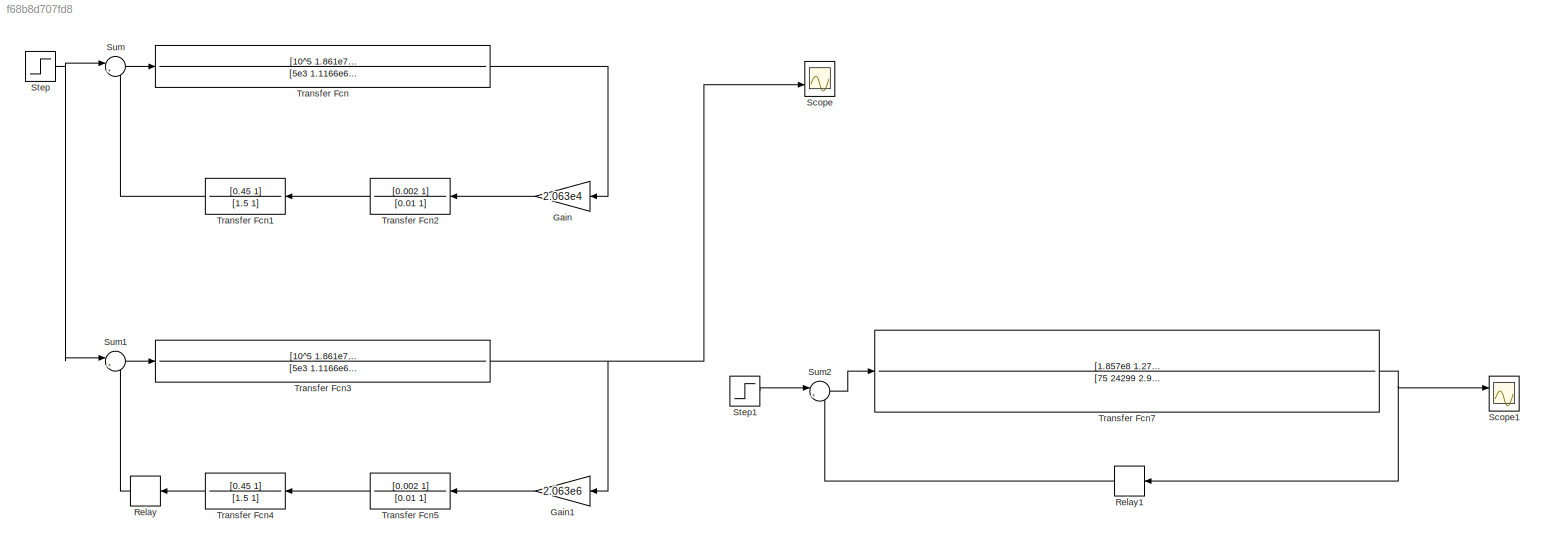
MODEL slx_f68b8d707fd8
KIND model
CONFIG AbsTol = auto
CONFIG EnableMultiTasking = off
CONFIG FixedStep = auto
CONFIG MaxStep = auto
CONFIG MinStep = auto
CONFIG RelTol = 1e-3
CONFIG SampleTimeConstraint = Unconstrained
CONFIG Solver = VariableStepAuto
CONFIG SolverName = VariableStepAuto
CONFIG StartTime = 0.0
CONFIG StopTime = 1
WORKSPACE source: mxarray member
WORKSPACE epse = 0.0001
BLOCK [Gain] Gain
  Gain = 2.063e4
BLOCK [Gain] Gain1
  Gain = 2.063e6
BLOCK [Relay] Relay
  OffOutputValue = -10
  OnOutputValue = 10
BLOCK [Relay] Relay1
  OffOutputValue = -10
  OffSwitchValue = 0
  OnOutputValue = 10
  OnSwitchValue = 0
BLOCK [Scope] Scope
  Floating = off
  NumInputPorts = 2
  Ports = [2]
  ScopeSpecificationString = Simulink.scopes.TimeScopeBlockCfg('CurrentConfiguration', extmgr.ConfigurationSet(extmgr.Configuration('Core','General UI',true,'FigureColor',[1 1 1]),extmgr.Configuration('Core','Source UI',true),extmgr.Configuration('Sources','WiredSimulink',true),extmgr.Configuration('Visuals','Time Domain',true,'SerializedDisplays',{struct('MinYLimReal','-0.000014','MaxYLimReal','0.000015','YLabelReal','','Min...<+2031ch>
BLOCK [Scope] Scope1
  Floating = off
  NumInputPorts = 2
  Ports = [2]
  ScopeSpecificationString = Simulink.scopes.TimeScopeBlockCfg('CurrentConfiguration', extmgr.ConfigurationSet(extmgr.Configuration('Core','General UI',true),extmgr.Configuration('Core','Source UI',true),extmgr.Configuration('Sources','WiredSimulink',true,'DataLoggingVariableName','ScopeData1'),extmgr.Configuration('Visuals','Time Domain',true,'SerializedDisplays',{struct('MinYLimReal','-1.54579','MaxYLimReal','0.10598','YLab...<+1459ch>
BLOCK [Step] Step
  SampleTime = 0
  Time = 0
BLOCK [Step] Step1
  SampleTime = 0
  Time = 0
BLOCK [Sum] Sum
  Inputs = |+-
  Ports = [2, 1]
BLOCK [Sum] Sum1
  Inputs = |+-
  Ports = [2, 1]
BLOCK [Sum] Sum2
  Inputs = |+-
  Ports = [2, 1]
BLOCK [TransferFcn] Transfer Fcn
  Denominator = [5e3 1.1166e6 1.8334e9 1.861e11 1.389e14 0]
  Numerator = [10^5 1.861e7 13.89e9]
BLOCK [TransferFcn] Transfer Fcn1
  Denominator = [1.5 1]
  Numerator = [0.45 1]
BLOCK [TransferFcn] Transfer Fcn2
  Denominator = [0.01 1]
  Numerator = [0.002 1]
BLOCK [TransferFcn] Transfer Fcn3
  Denominator = [5e3 1.1166e6 1.8334e9 1.861e11 1.389e14 0]
  Numerator = [10^5 1.861e7 13.89e9]
BLOCK [TransferFcn] Transfer Fcn4
  Denominator = [1.5 1]
  Numerator = [0.45 1]
BLOCK [TransferFcn] Transfer Fcn5
  Denominator = [0.01 1]
  Numerator = [0.002 1]
BLOCK [TransferFcn] Transfer Fcn7
  Denominator = [75 24299 2.919e07 5.561e09 2.366e12 2.099e14 1.389e14 0]
  Numerator = [1.857e8 1.278e11 4.335e13 1.299e16 2.866e16]
LINE Gain1:1 -> Transfer Fcn5:1
LINE Gain:1 -> Transfer Fcn2:1
LINE Relay1:1 -> Sum2:2
LINE Relay:1 -> Sum1:2
LINE Step1:1 -> Sum2:1
NET Step:1 -> Sum1:1, Sum:1
LINE Sum1:1 -> Transfer Fcn3:1
LINE Sum2:1 -> Transfer Fcn7:1
LINE Sum:1 -> Transfer Fcn:1
LINE Transfer Fcn1:1 -> Sum:2
LINE Transfer Fcn2:1 -> Transfer Fcn1:1
NET Transfer Fcn3:1 -> Gain1:1, Scope:2
LINE Transfer Fcn4:1 -> Relay:1
LINE Transfer Fcn5:1 -> Transfer Fcn4:1
NET Transfer Fcn7:1 -> Relay1:1, Scope1:1
LINE Transfer Fcn:1 -> Gain:1
note: NET lines group one-source signal fan-out (src -> all destinations, sorted); 1:1 wires keep LINE
